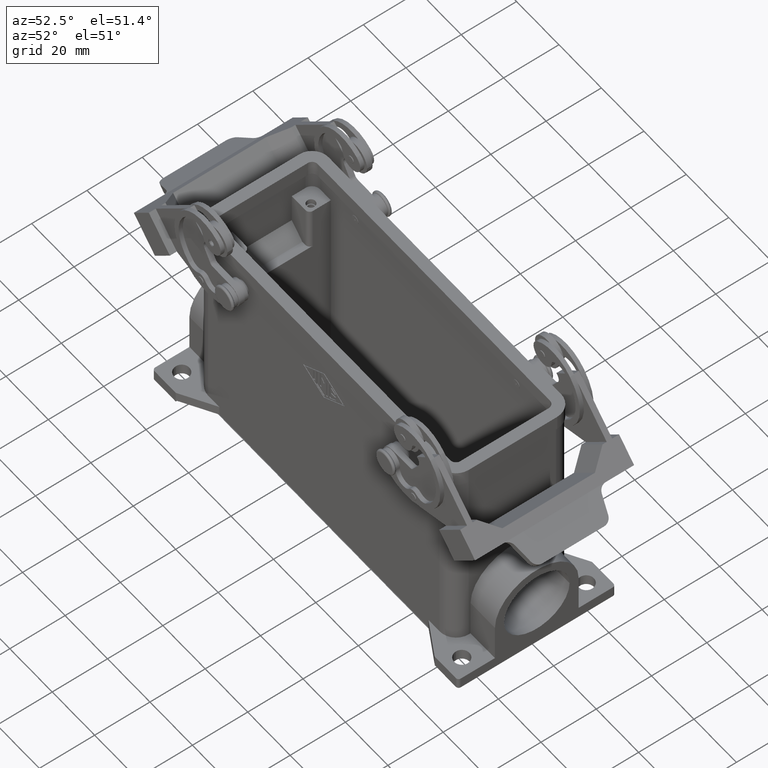
[diagram: clean part render]
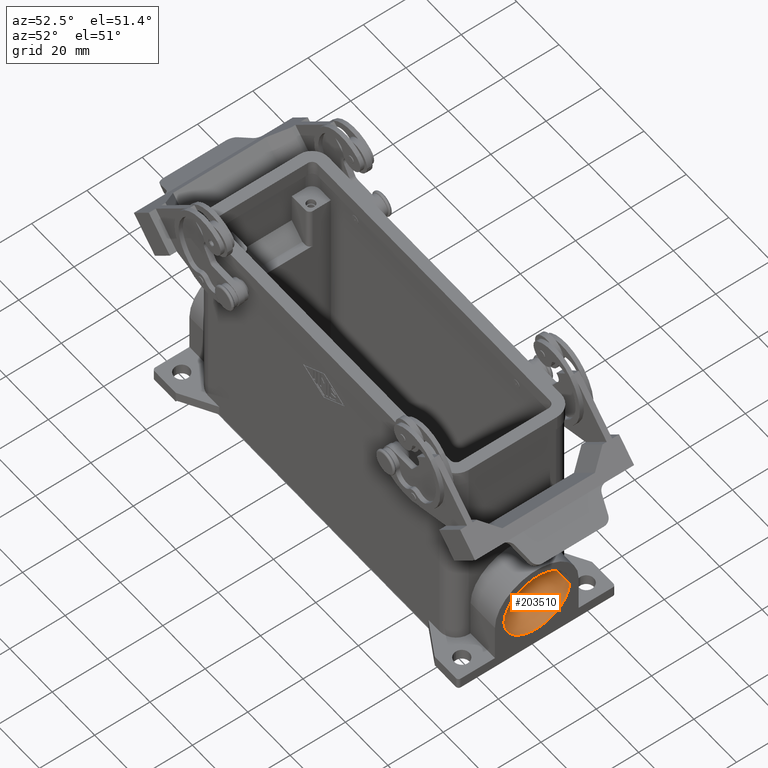
[diagram: same view with one face highlighted and labeled with its STEP entity id]
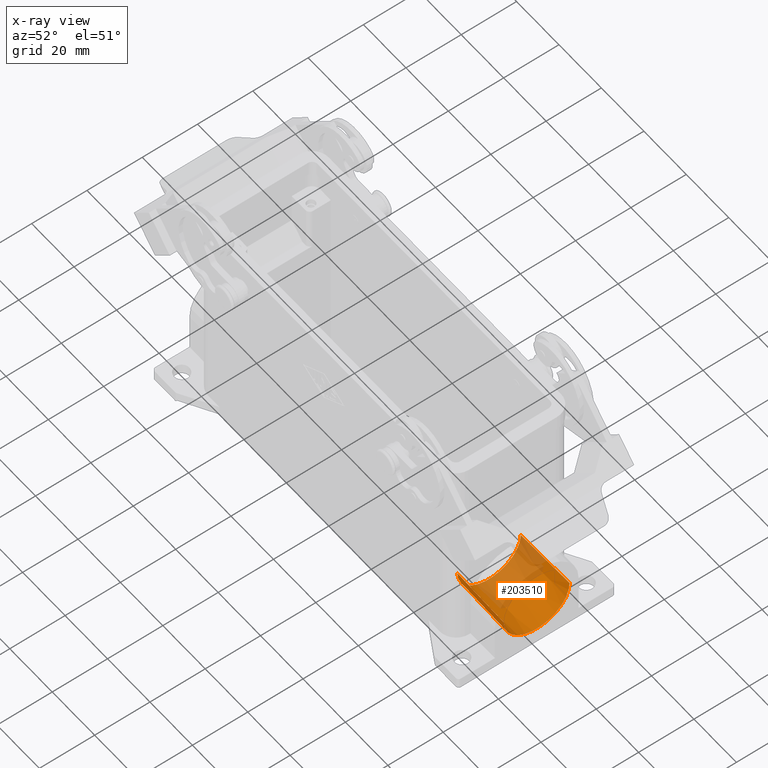
[diagram: x-ray of the same camera — body ghosted, the highlighted face saturated]
A machine part, auxiliary view. The second image highlights one B-rep face of the part: STEP entity #203510.
The next image is the same camera in x-ray: the body ghosted, the highlighted face saturated — about 39% of this face is hidden behind the body in this view.
In plain terms, the highlighted conical surface has half-angle 1 deg.
Its self-contained STEP definition (entity closure, byte-faithful):
#75350=CARTESIAN_POINT('',(72.,0.,-33.11));
#75360=DIRECTION('',(1.,0.,0.));
#75370=DIRECTION('',(0.,1.,0.));
#75380=AXIS2_PLACEMENT_3D('',#75350,#75360,#75370);
#75390=CIRCLE('',#75380,11.8803747453836);
#75400=CARTESIAN_POINT('',(72.,11.8803747453836,-33.11));
#75410=VERTEX_POINT('',#75400);
#75420=CARTESIAN_POINT('',(72.,-11.8803747453836,-33.11));
#75430=VERTEX_POINT('',#75420);
#75460=EDGE_CURVE('',#75430,#75410,#75390,.T.);
#180130=CARTESIAN_POINT('',(49.5000000000001,0.,-33.11));
#180140=DIRECTION('',(1.,0.,0.));
#180150=DIRECTION('',(0.,1.,0.));
#180160=AXIS2_PLACEMENT_3D('',#180130,#180140,#180150);
#180170=CIRCLE('',#180160,11.4876357844987);
#180180=CARTESIAN_POINT('',(49.5000000000001,11.4876357844987,-33.11));
#180190=VERTEX_POINT('',#180180);
#180200=CARTESIAN_POINT('',(49.5000000000001,-11.4876357844987,-33.11));
#180210=VERTEX_POINT('',#180200);
#180240=EDGE_CURVE('',#180210,#180190,#180170,.T.);
#203300=CARTESIAN_POINT('',(70.2598320024305,0.,-33.11));
#203310=DIRECTION('',(1.,0.,0.));
#203320=DIRECTION('',(0.,1.,0.));
#203330=AXIS2_PLACEMENT_3D('',#203300,#203310,#203320);
#203340=CONICAL_SURFACE('',#203330,11.85,0.0174532925199433);
#203350=CARTESIAN_POINT('',(70.2598320024305,-11.85,-33.11));
#203360=DIRECTION('',(0.999847695156391,-0.0174524064372835,0.));
#203370=VECTOR('',#203360,678.98945870782);
#203380=LINE('',#203350,#203370);
#203390=EDGE_CURVE('',#180210,#75430,#203380,.T.);
#203400=ORIENTED_EDGE('',*,*,#203390,.T.);
#203410=ORIENTED_EDGE('',*,*,#180240,.F.);
#203420=CARTESIAN_POINT('',(70.2598320024305,11.85,-33.11));
#203430=DIRECTION('',(0.999847695156391,0.0174524064372835,0.));
#203440=VECTOR('',#203430,678.98945870782);
#203450=LINE('',#203420,#203440);
#203460=EDGE_CURVE('',#180190,#75410,#203450,.T.);
#203470=ORIENTED_EDGE('',*,*,#203460,.F.);
#203480=ORIENTED_EDGE('',*,*,#75460,.T.);
#203490=EDGE_LOOP('',(#203480,#203470,#203410,#203400));
#203500=FACE_OUTER_BOUND('',#203490,.T.);
#203510=ADVANCED_FACE('',(#203500),#203340,.F.);